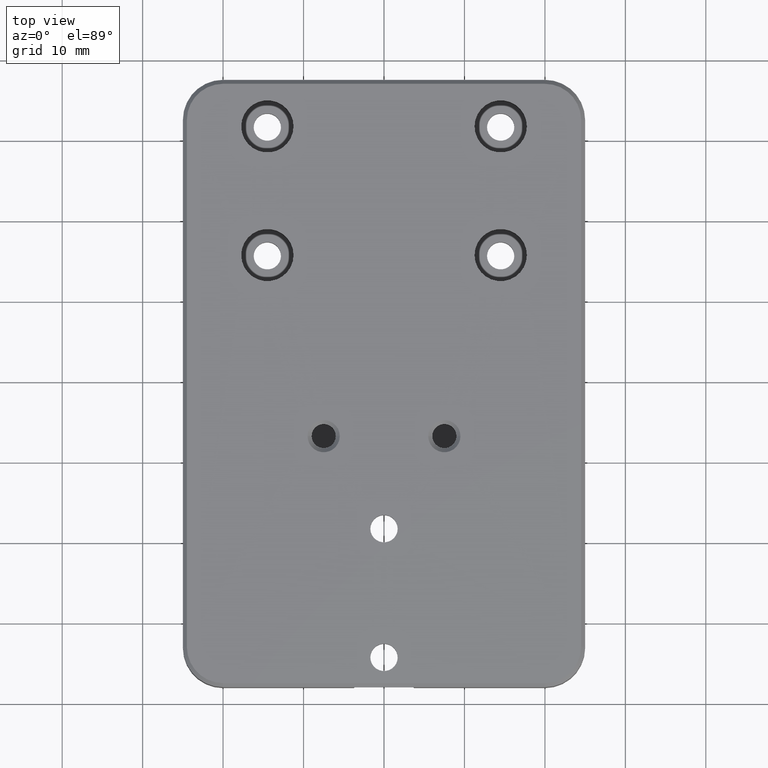
[diagram: clean part render]
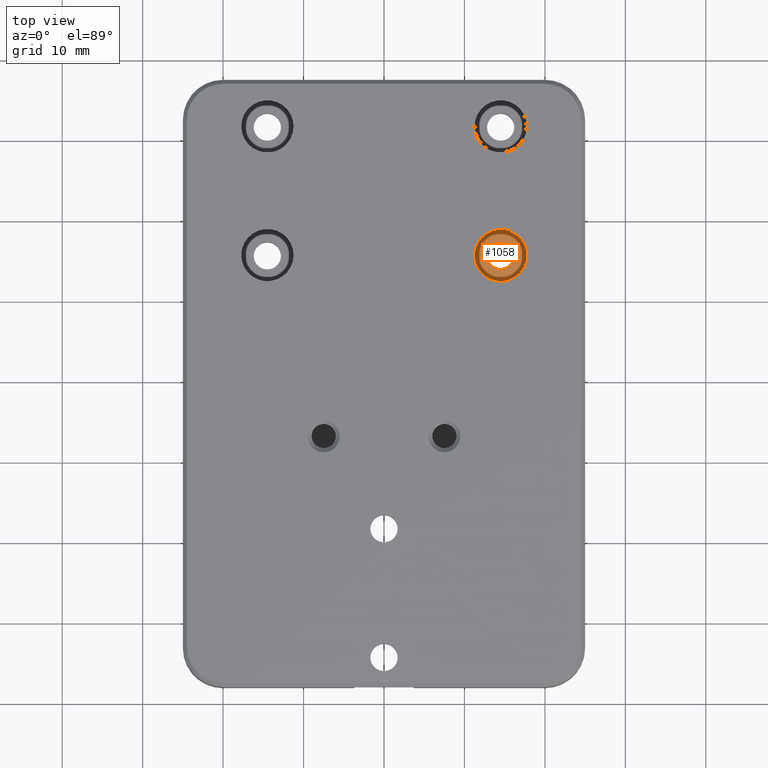
[diagram: same view with one face highlighted and labeled with its STEP entity id]
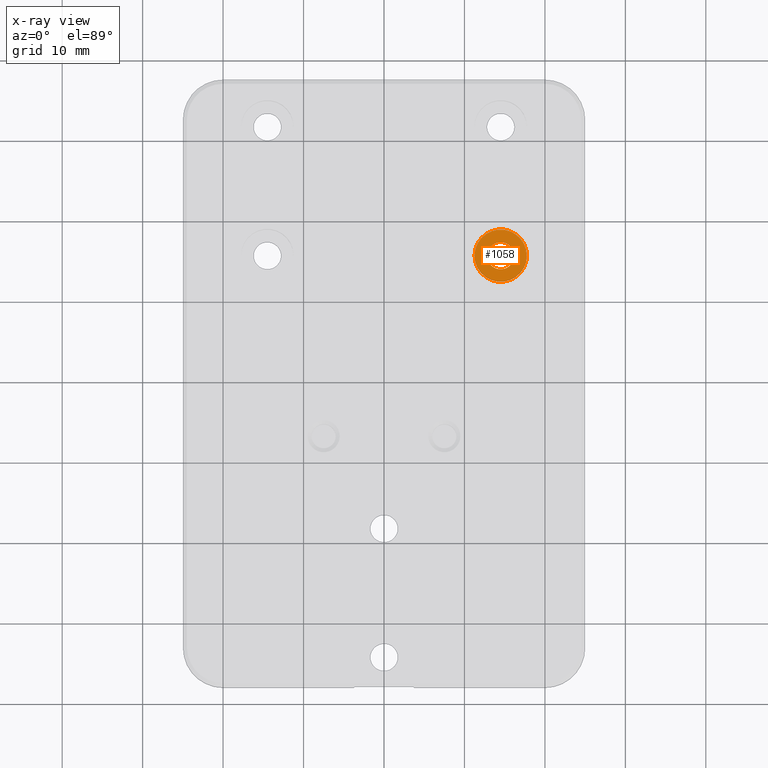
[diagram: x-ray of the same camera — body ghosted, the highlighted face saturated]
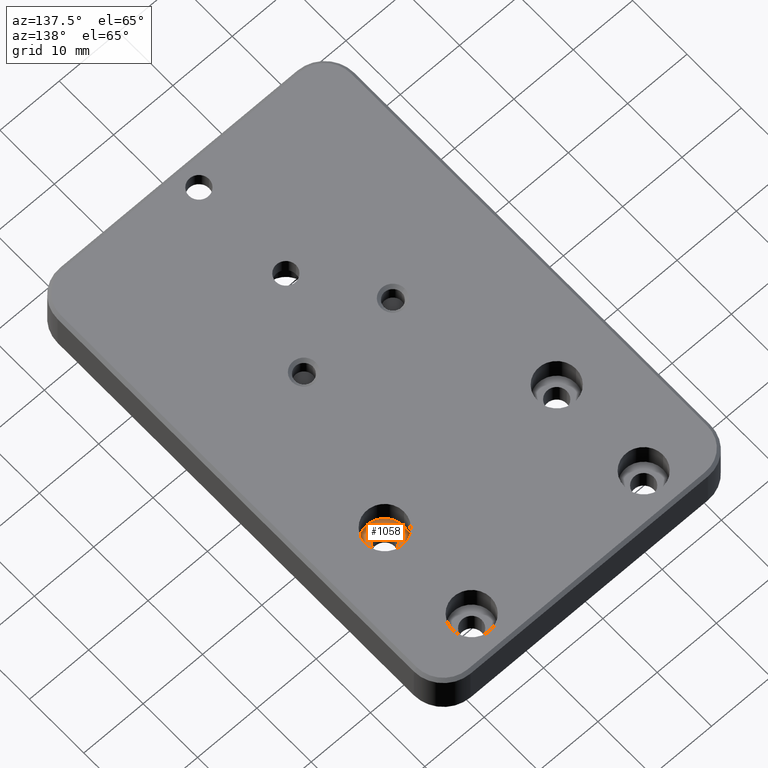
[diagram: same view with one face highlighted and labeled with its STEP entity id]
A machine part, top view. The second image highlights one B-rep face of the part: STEP entity #1058.
The next image is the same camera in x-ray: the body ghosted, the highlighted face saturated — about 0% of this face is hidden behind the body in this view.
A second angle (auxiliary view) of the same face is appended — the face is thin or edge-on in the first view.
In plain terms, the highlighted planar face has unit normal (0, 0, -1).
Its self-contained STEP definition (entity closure, byte-faithful):
#46 = CIRCLE ( 'NONE', #1349, 3.249999999999999556 ) ;
#115 = EDGE_CURVE ( 'NONE', #116, #1521, #46, .T. ) ;
#116 = VERTEX_POINT ( 'NONE', #1079 ) ;
#124 = CARTESIAN_POINT ( 'NONE',  ( 11.25000000000000711, 5.700000000000010836, 3.700000000000000178 ) ) ;
#175 = DIRECTION ( 'NONE',  ( 0.0000000000000000000, 0.0000000000000000000, -1.000000000000000000 ) ) ;
#415 = CIRCLE ( 'NONE', #1820, 1.700000000000000178 ) ;
#444 = VERTEX_POINT ( 'NONE', #640 ) ;
#513 = CARTESIAN_POINT ( 'NONE',  ( 14.50000000000000533, 5.700000000000010836, 3.700000000000000178 ) ) ;
#557 = DIRECTION ( 'NONE',  ( 1.000000000000000000, 0.0000000000000000000, 0.0000000000000000000 ) ) ;
#575 = ORIENTED_EDGE ( 'NONE', *, *, #2208, .F. ) ;
#605 = ORIENTED_EDGE ( 'NONE', *, *, #115, .T. ) ;
#614 = CIRCLE ( 'NONE', #773, 1.700000000000000178 ) ;
#640 = CARTESIAN_POINT ( 'NONE',  ( 12.80000000000000604, 5.700000000000010836, 3.700000000000000178 ) ) ;
#715 = CARTESIAN_POINT ( 'NONE',  ( 16.20000000000000639, 5.700000000000010836, 3.700000000000000178 ) ) ;
#725 = CARTESIAN_POINT ( 'NONE',  ( 14.50000000000000533, 5.700000000000010836, 3.700000000000000178 ) ) ;
#731 = EDGE_LOOP ( 'NONE', ( #575, #1174 ) ) ;
#738 = DIRECTION ( 'NONE',  ( -0.0000000000000000000, -0.0000000000000000000, 1.000000000000000000 ) ) ;
#773 = AXIS2_PLACEMENT_3D ( 'NONE', #725, #738, #2386 ) ;
#888 = DIRECTION ( 'NONE',  ( -0.0000000000000000000, -0.0000000000000000000, 1.000000000000000000 ) ) ;
#916 = DIRECTION ( 'NONE',  ( -0.0000000000000000000, -0.0000000000000000000, 1.000000000000000000 ) ) ;
#922 = DIRECTION ( 'NONE',  ( -1.000000000000000000, 0.0000000000000000000, -0.0000000000000000000 ) ) ;
#979 = EDGE_LOOP ( 'NONE', ( #605, #2282 ) ) ;
#1058 = ADVANCED_FACE ( 'NONE', ( #1883, #1103 ), #1281, .F. ) ;
#1079 = CARTESIAN_POINT ( 'NONE',  ( 17.75000000000000711, 5.700000000000010836, 3.700000000000000178 ) ) ;
#1103 = FACE_OUTER_BOUND ( 'NONE', #979, .T. ) ;
#1122 = DIRECTION ( 'NONE',  ( 1.000000000000000000, 0.0000000000000000000, 0.0000000000000000000 ) ) ;
#1174 = ORIENTED_EDGE ( 'NONE', *, *, #2223, .F. ) ;
#1182 = EDGE_CURVE ( 'NONE', #1521, #116, #2340, .T. ) ;
#1281 = PLANE ( 'NONE',  #1651 ) ;
#1349 = AXIS2_PLACEMENT_3D ( 'NONE', #2072, #916, #2046 ) ;
#1363 = CARTESIAN_POINT ( 'NONE',  ( 14.50000000000000533, 5.700000000000010836, 3.700000000000000178 ) ) ;
#1501 = CARTESIAN_POINT ( 'NONE',  ( 16.20000000000000639, 5.700000000000010836, 3.700000000000000178 ) ) ;
#1521 = VERTEX_POINT ( 'NONE', #124 ) ;
#1631 = VERTEX_POINT ( 'NONE', #1501 ) ;
#1651 = AXIS2_PLACEMENT_3D ( 'NONE', #715, #175, #922 ) ;
#1820 = AXIS2_PLACEMENT_3D ( 'NONE', #513, #888, #1122 ) ;
#1883 = FACE_BOUND ( 'NONE', #731, .T. ) ;
#2046 = DIRECTION ( 'NONE',  ( 1.000000000000000000, 0.0000000000000000000, 0.0000000000000000000 ) ) ;
#2072 = CARTESIAN_POINT ( 'NONE',  ( 14.50000000000000533, 5.700000000000010836, 3.700000000000000178 ) ) ;
#2140 = DIRECTION ( 'NONE',  ( -0.0000000000000000000, -0.0000000000000000000, 1.000000000000000000 ) ) ;
#2208 = EDGE_CURVE ( 'NONE', #1631, #444, #415, .T. ) ;
#2223 = EDGE_CURVE ( 'NONE', #444, #1631, #614, .T. ) ;
#2282 = ORIENTED_EDGE ( 'NONE', *, *, #1182, .T. ) ;
#2340 = CIRCLE ( 'NONE', #2385, 3.249999999999999556 ) ;
#2385 = AXIS2_PLACEMENT_3D ( 'NONE', #1363, #2140, #557 ) ;
#2386 = DIRECTION ( 'NONE',  ( 1.000000000000000000, 0.0000000000000000000, 0.0000000000000000000 ) ) ;